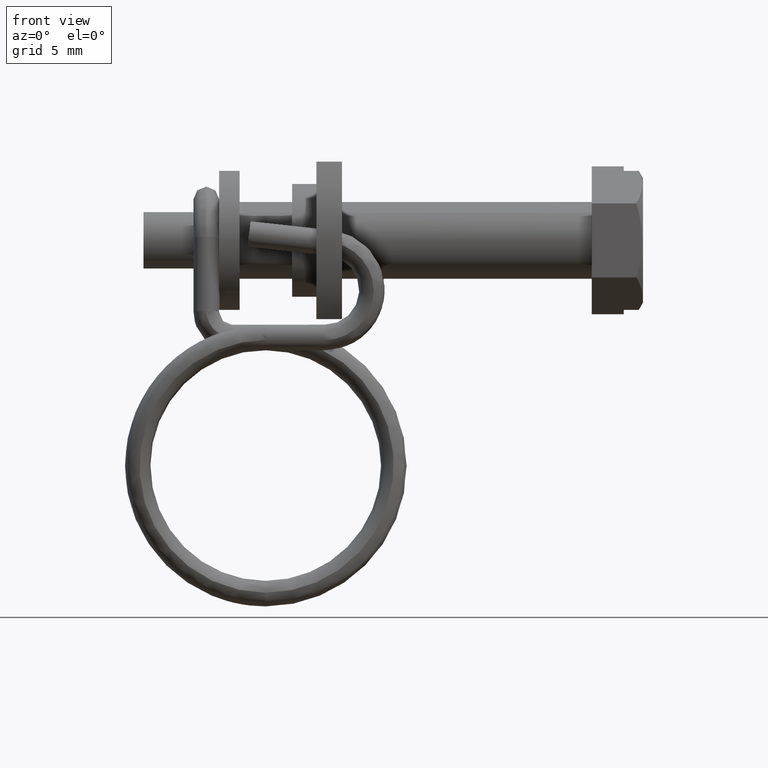
[diagram: clean part render]
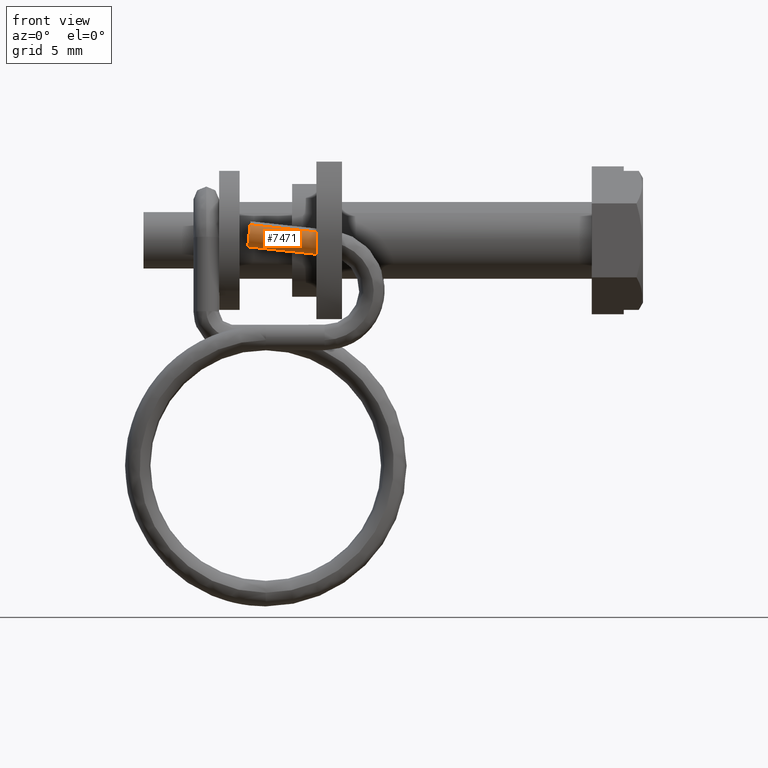
[diagram: same view with one face highlighted and labeled with its STEP entity id]
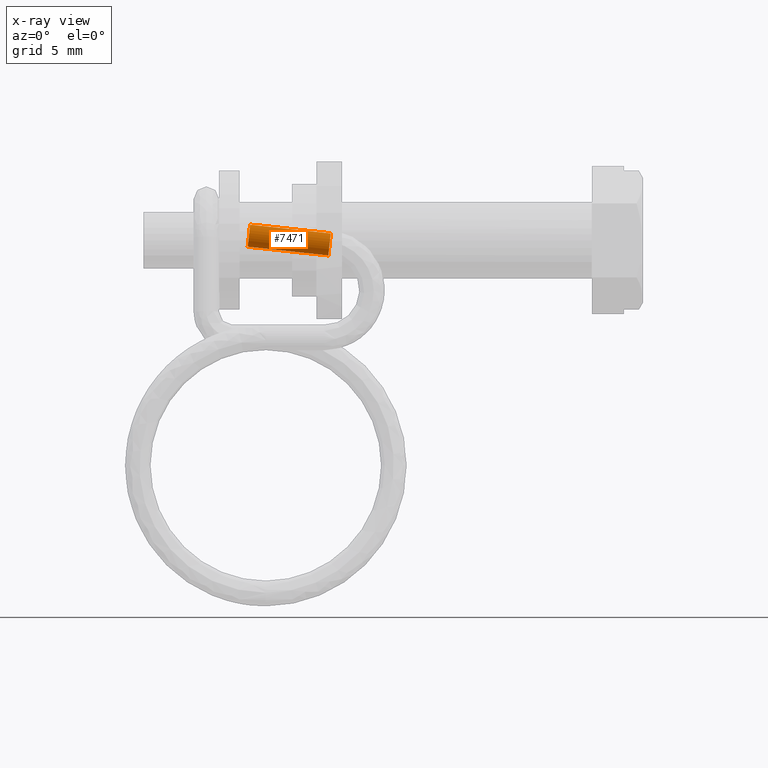
[diagram: x-ray of the same camera — body ghosted, the highlighted face saturated]
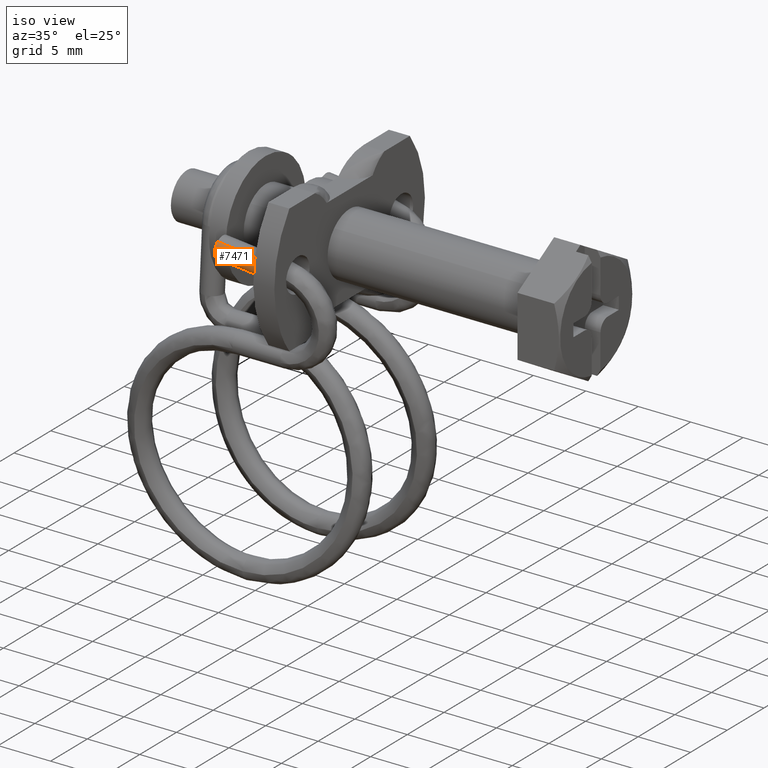
[diagram: same view with one face highlighted and labeled with its STEP entity id]
A machine part, front view. The second image highlights one B-rep face of the part: STEP entity #7471.
The next image is the same camera in x-ray: the body ghosted, the highlighted face saturated — about 0% of this face is hidden behind the body in this view.
A second angle (iso view) of the same face is appended — the face is thin or edge-on in the first view.
In plain terms, the highlighted face is a freeform B-spline surface patch.
Its self-contained STEP definition (entity closure, byte-faithful):
#7206=CARTESIAN_POINT('',(-20.452304760144781,-7.998847460255956,-0.130652155569292));
#7207=VERTEX_POINT('',#7206);
#7238=CARTESIAN_POINT('',(-20.382353437831782,-7.678675374040310,0.534061114706381));
#7239=VERTEX_POINT('',#7238);
#7253=CARTESIAN_POINT('',(-20.452304760144781,-7.998847460255956,-0.130652155569292));
#7254=CARTESIAN_POINT('',(-20.425080534378210,-7.981875740409612,0.120379108599540));
#7255=CARTESIAN_POINT('',(-20.399520883831681,-7.864528331624545,0.363285571447736));
#7256=CARTESIAN_POINT('',(-20.382353437831782,-7.678675374040310,0.534061114706381));
#7257=B_SPLINE_CURVE_WITH_KNOTS('',3,(#7253,#7254,#7255,#7256),.UNSPECIFIED.,.F.,.U.,(4,4),(0.500000000000000,0.620832598763317),.UNSPECIFIED.);
#7258=EDGE_CURVE('',#7207,#7239,#7257,.T.);
#7373=CARTESIAN_POINT('',(-20.552096293820089,-6.323582636844204,-0.927051042370239));
#7374=VERTEX_POINT('',#7373);
#7375=CARTESIAN_POINT('',(-20.552096293820089,-6.323582636844204,-0.927051042370239));
#7376=CARTESIAN_POINT('',(-20.552688374310769,-6.329992595297851,-0.932940856158306));
#7377=CARTESIAN_POINT('',(-20.553270472319792,-6.336484040728913,-0.938744870609893));
#7378=CARTESIAN_POINT('',(-20.570994473927321,-6.540169662772382,-1.115897915373390));
#7379=CARTESIAN_POINT('',(-20.578706021082770,-6.806992181652477,-1.205669436400888));
#7380=CARTESIAN_POINT('',(-20.570893699134778,-7.329397726124793,-1.171192734696632));
#7381=CARTESIAN_POINT('',(-20.555417937003099,-7.581763865764630,-1.047156813726547));
#7382=CARTESIAN_POINT('',(-20.510065321199932,-7.926328877589108,-0.655524483697452));
#7383=CARTESIAN_POINT('',(-20.480467741349759,-8.016405976071402,-0.390339681012631));
#7384=CARTESIAN_POINT('',(-20.452304760144781,-7.998847460255956,-0.130652155569292));
#7385=B_SPLINE_CURVE_WITH_KNOTS('',3,(#7375,#7376,#7377,#7378,#7379,#7380,#7381,#7382,#7383,#7384),.UNSPECIFIED.,.F.,.U.,(4,2,2,2,4),(0.120832598758769,0.125000000000000,0.250000000000000,0.375000000000000,0.500000000000000),.UNSPECIFIED.);
#7386=EDGE_CURVE('',#7374,#7207,#7385,.T.);
#7401=CARTESIAN_POINT('',(-20.394705253944782,-6.322355530273424,-0.944208340299319));
#7402=CARTESIAN_POINT('',(-20.462466739688551,-7.057790194675030,-1.618407298653820));
#7403=CARTESIAN_POINT('',(-20.377594655824691,-7.735341894975789,-0.887845581342986));
#7404=CARTESIAN_POINT('',(-20.292722571960830,-8.412893595276549,-0.157283864032152));
#7405=CARTESIAN_POINT('',(-20.224961086217061,-7.677458930874944,0.516915094322350));
#7406=CARTESIAN_POINT('',(-27.009091267651819,-6.373700618912236,-0.223409864446640));
#7407=CARTESIAN_POINT('',(-27.076852753395585,-7.109135283313840,-0.897608822801142));
#7408=CARTESIAN_POINT('',(-26.991980669531731,-7.786686983614600,-0.167047105490307));
#7409=CARTESIAN_POINT('',(-26.907108585667860,-8.464238683915360,0.563514611820527));
#7410=CARTESIAN_POINT('',(-26.839347099924090,-7.728804019513755,1.237713570175028));
#7418=(BOUNDED_SURFACE()B_SPLINE_SURFACE(2,1,((#7401,#7406),(#7402,#7407),(#7403,#7408),(#7404,#7409),(#7405,#7410)),.UNSPECIFIED.,.F.,.F.,.U.)B_SPLINE_SURFACE_WITH_KNOTS((3,2,3),(2,2),(3.141592653589793,4.712388980384690,6.283185307179586),(0.0,6.653742488197310),.UNSPECIFIED.)GEOMETRIC_REPRESENTATION_ITEM()RATIONAL_B_SPLINE_SURFACE(((1.0,1.0),(0.707106781186548,0.707106781186548),(1.0,1.0),(0.707106781186548,0.707106781186548),(1.0,1.0)))REPRESENTATION_ITEM('')SURFACE());
#7419=CARTESIAN_POINT('',(-26.847764763865442,-6.372448382411475,-0.240990177711660));
#7420=VERTEX_POINT('',#7419);
#7421=CARTESIAN_POINT('',(-26.870467218598758,-7.117070274288963,-0.502360702458274));
#7422=VERTEX_POINT('',#7421);
#7423=CARTESIAN_POINT('',(-26.847764763865442,-6.372448382411475,-0.240990177711660));
#7424=CARTESIAN_POINT('',(-26.856370196948529,-6.465637443531533,-0.326595875932402));
#7425=CARTESIAN_POINT('',(-26.866344707402330,-6.634059808108398,-0.430124013303158));
#7426=CARTESIAN_POINT('',(-26.871972876810570,-6.896673077233724,-0.500477639473296));
#7427=CARTESIAN_POINT('',(-26.871604217050880,-7.041157275175620,-0.507386777202879));
#7428=CARTESIAN_POINT('',(-26.870467218598758,-7.117070274288963,-0.502360702458274));
#7429=B_SPLINE_CURVE_WITH_KNOTS('',3,(#7423,#7424,#7425,#7426,#7427,#7428),.UNSPECIFIED.,.F.,.U.,(4,1,1,4),(7.111033E-009,0.380437873478841,0.583337810438765,0.811600448377878),.UNSPECIFIED.);
#7430=EDGE_CURVE('',#7420,#7422,#7429,.T.);
#7431=ORIENTED_EDGE('',*,*,#7430,.F.);
#7432=CARTESIAN_POINT('',(-20.552096293820089,-6.323582636844204,-0.927051042370239));
#7433=CARTESIAN_POINT('',(-26.847764763865442,-6.372448382411475,-0.240990177711660));
#7434=QUASI_UNIFORM_CURVE('',1,(#7432,#7433),.UNSPECIFIED.,.F.,.U.);
#7435=EDGE_CURVE('',#7374,#7420,#7434,.T.);
#7436=ORIENTED_EDGE('',*,*,#7435,.F.);
#7437=ORIENTED_EDGE('',*,*,#7386,.T.);
#7438=ORIENTED_EDGE('',*,*,#7258,.T.);
#7439=CARTESIAN_POINT('',(-26.678020627360539,-7.727551617552737,1.220132982180986));
#7440=VERTEX_POINT('',#7439);
#7441=CARTESIAN_POINT('',(-20.382353437831782,-7.678675374040310,0.534061114706381));
#7442=CARTESIAN_POINT('',(-26.678020627360539,-7.727551617552737,1.220132982180986));
#7443=QUASI_UNIFORM_CURVE('',1,(#7441,#7442),.UNSPECIFIED.,.F.,.U.);
#7444=EDGE_CURVE('',#7239,#7440,#7443,.T.);
#7445=ORIENTED_EDGE('',*,*,#7444,.T.);
#7446=CARTESIAN_POINT('',(-26.747972589967020,-8.047718454796172,0.555414210501062));
#7447=VERTEX_POINT('',#7446);
#7448=CARTESIAN_POINT('',(-26.747972589967020,-8.047718454796172,0.555414210501062));
#7449=CARTESIAN_POINT('',(-26.738613566880499,-8.041909884623246,0.641710776059630));
#7450=CARTESIAN_POINT('',(-26.722745717197629,-8.012113597326744,0.789444129470934));
#7451=CARTESIAN_POINT('',(-26.698432973658790,-7.907767312460256,1.019982269531576));
#7452=CARTESIAN_POINT('',(-26.684983424970159,-7.803202882717816,1.150850160853822));
#7453=CARTESIAN_POINT('',(-26.678020627360539,-7.727551617552737,1.220132982180986));
#7454=B_SPLINE_CURVE_WITH_KNOTS('',3,(#7448,#7449,#7450,#7451,#7452,#7453),.UNSPECIFIED.,.F.,.U.,(4,1,1,4),(9.228077E-009,0.260989906642225,0.450793410983523,0.759235934892408),.UNSPECIFIED.);
#7455=EDGE_CURVE('',#7447,#7440,#7454,.T.);
#7456=ORIENTED_EDGE('',*,*,#7455,.F.);
#7457=CARTESIAN_POINT('',(-26.870467218598758,-7.117070274288963,-0.502360702458274));
#7458=CARTESIAN_POINT('',(-26.868528647480922,-7.247707056424846,-0.493877193218438));
#7459=CARTESIAN_POINT('',(-26.861377668314351,-7.440859479496786,-0.442015390574957));
#7460=CARTESIAN_POINT('',(-26.844570822274729,-7.664002632692990,-0.303683158002934));
#7461=CARTESIAN_POINT('',(-26.828831841310929,-7.807773239189062,-0.169496163630878));
#7462=CARTESIAN_POINT('',(-26.810557676455790,-7.922418214131974,-0.009970404515763));
#7463=CARTESIAN_POINT('',(-26.783750444773389,-8.030621449485942,0.228317659832535));
#7464=CARTESIAN_POINT('',(-26.762054801572049,-8.056645661946019,0.425553292561298));
#7465=CARTESIAN_POINT('',(-26.747972589967020,-8.047718454796172,0.555414210501062));
#7466=B_SPLINE_CURVE_WITH_KNOTS('',3,(#7457,#7458,#7459,#7460,#7461,#7462,#7463,#7464,#7465),.UNSPECIFIED.,.F.,.U.,(4,1,1,1,1,1,4),(0.000000015209753,0.392709109454080,0.589066676381964,0.785417702940539,0.981767305275401,1.178126545732872,1.570835388235934),.UNSPECIFIED.);
#7467=EDGE_CURVE('',#7422,#7447,#7466,.T.);
#7468=ORIENTED_EDGE('',*,*,#7467,.F.);
#7469=EDGE_LOOP('',(#7431,#7436,#7437,#7438,#7445,#7456,#7468));
#7470=FACE_OUTER_BOUND('',#7469,.T.);
#7471=ADVANCED_FACE('',(#7470),#7418,.T.);